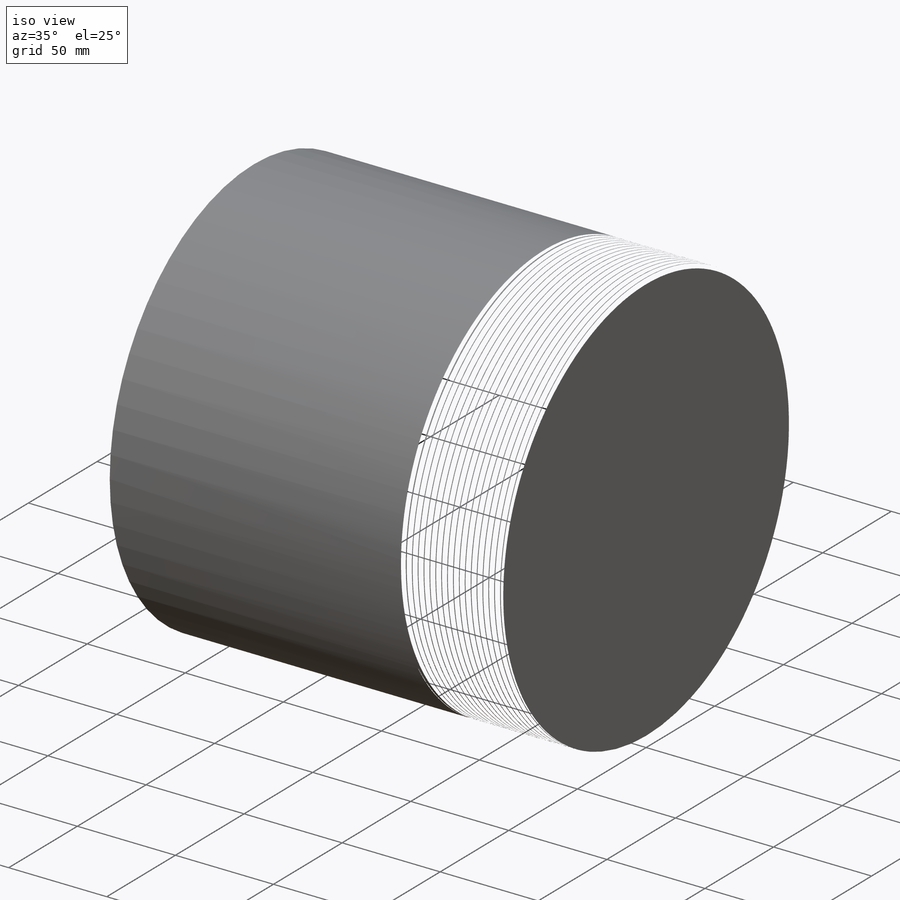
[diagram: iso view]
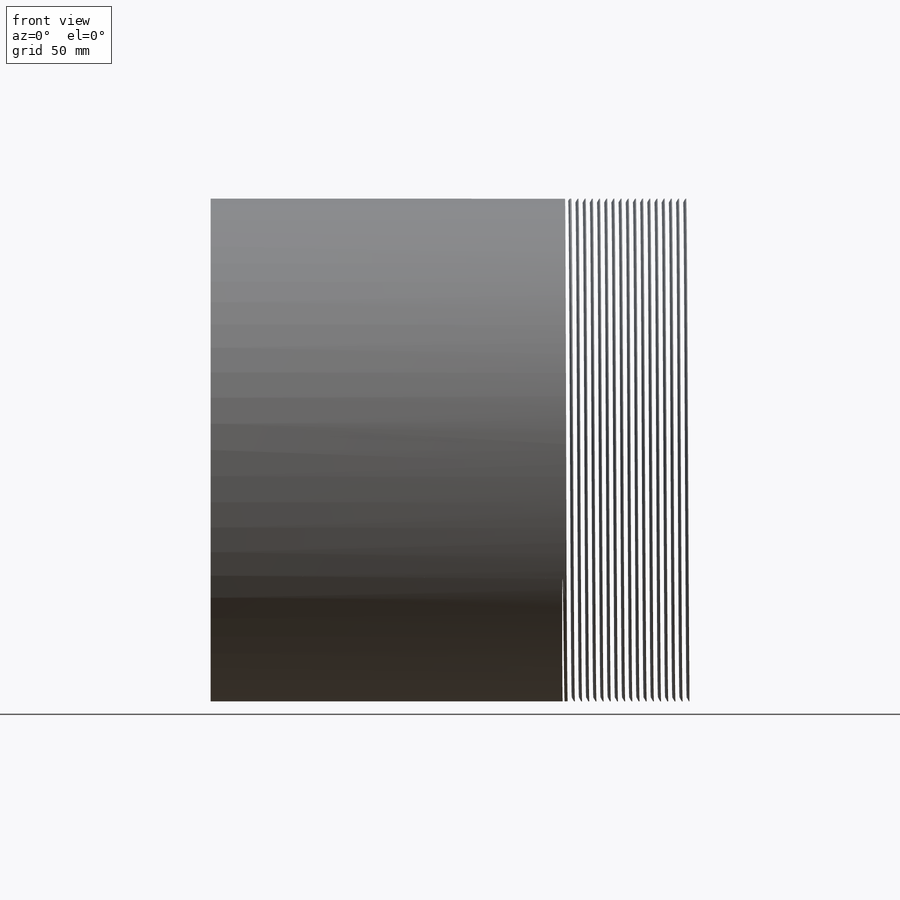
[diagram: front view]
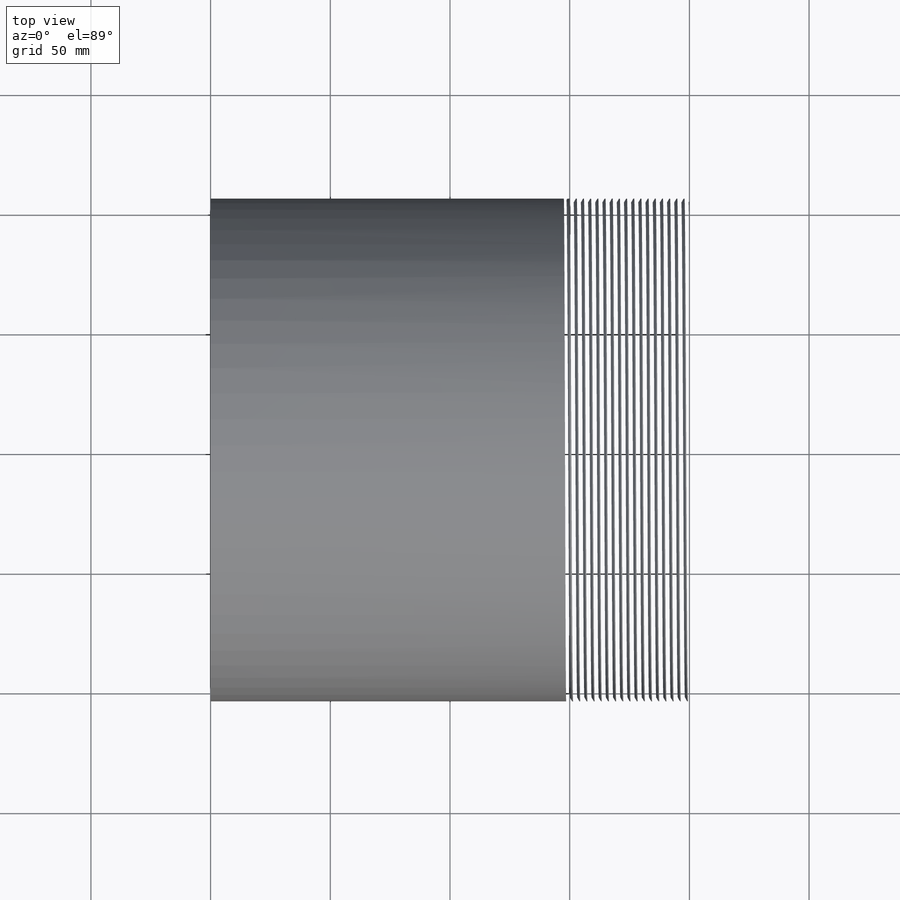
[diagram: top view]
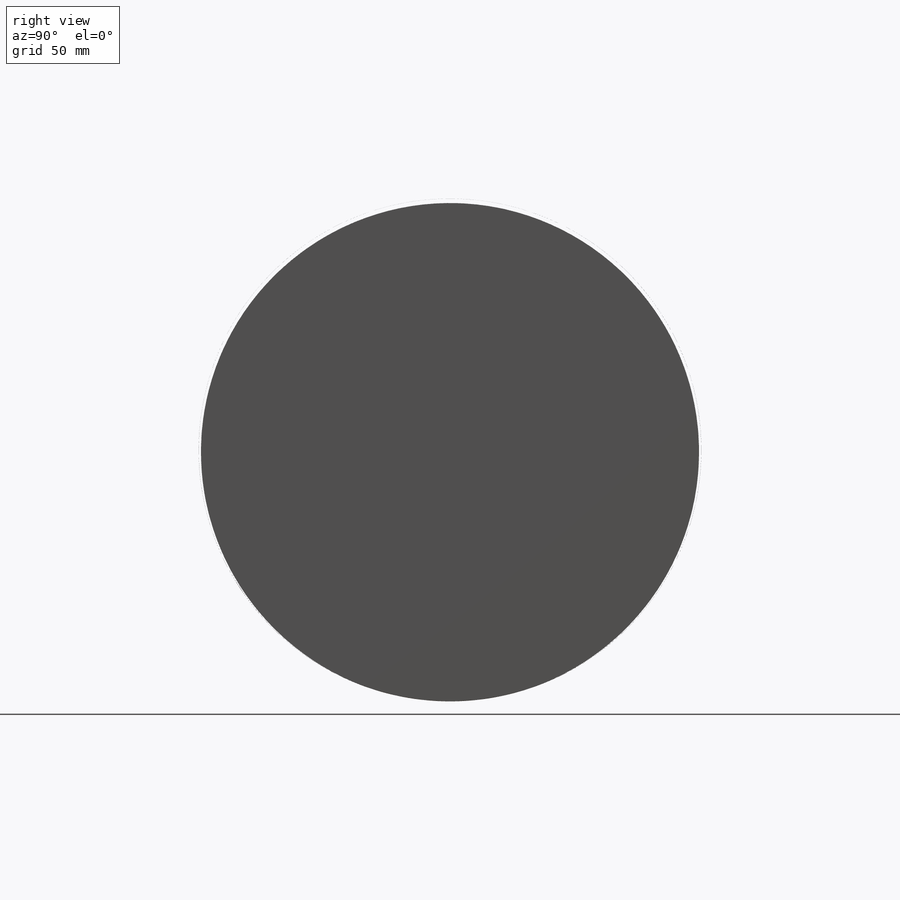
[diagram: right view]
SOLIDWORKS PART (.sldprt)
format: sldprt  version: not decoded by parser v0  size: 2,599,424 bytes
history: native  units: mm
features: plane x5, sketch x4, material x1, extrude x1, helix x1, sweep x1 (+10 scaffold rows collapsed)
feature tree (23):
  scaffold x10  (default folders/planes/origin — collapsed)
  material  "Material <nicht festgelegt>"
  plane  "Vorderansicht"
  plane  "Draufsicht"
  plane  "Seitenansicht"
  sketch  "Skizze1"  dims[D1=210.0mm]
  extrude  "Aufsatz-Linear austragen1"  Depth=200mm
  plane  "Ebene1"  Offset=3mm AbstandProfilanfang=3mm
  sketch  "Skizze4"  dims[Durchmesser=210.0mm D1=0.0mm]
  helix  "Spirale/Helix1"  Pitch=3mm PosGewindeanfang=90deg Gewindevorlauf=3mm Gewindegang1=1 AußenØ1=210mm Steigung2=3mm Gewindelänge=50mm Gewindegang2=17.666667 AußenØ2=210mm Steigung3=3mm Gewindeauslauf=3mm Gewindegang3=18.666667 AuslaufØ=213.680608mm Steigung4=3mm Steigung=3mm
  sketch  "Skizze2"  dims[D1=0.0mm]
  plane  "Ebene2"
  sketch  "Skizze3"  dims[c1.D1=0.217mm c1.D3=0.1mm c2.D3=0.1mm c3.D3=0.1mm c4.D3=0.1mm c5.D3=0.1mm c6.D3=0.1mm c7.D3=0.1mm c7.GewindeRadius=~0.433013mm c7.D2=~0.496521mm c7.Winkel=60.0deg c8.D3=8.16mm c8.D4=~1.335989mm c8.D5=~0.375855mm c8.D6=0.8315mm c8.D7=0.94mm c8.D1=~1.423828mm c8.Winkel=60.0deg c9.D1=~0.32476mm c9.Radius=105.0mm c9.Steigung=3.0mm c9.D2=0.02mm c9.Gewindetiefe=~1.299038mm c10.Gewindetiefe=~1.299038mm c11.Gewindetiefe=~2.598076mm]
  sweep  "Gewinde"
decode coverage: 6 of 7 modeling features carry decoded parameters
note: ~ marks probable driven/reference dimensions
note: suppression state not decoded; provenance and decode notes live in map.json
